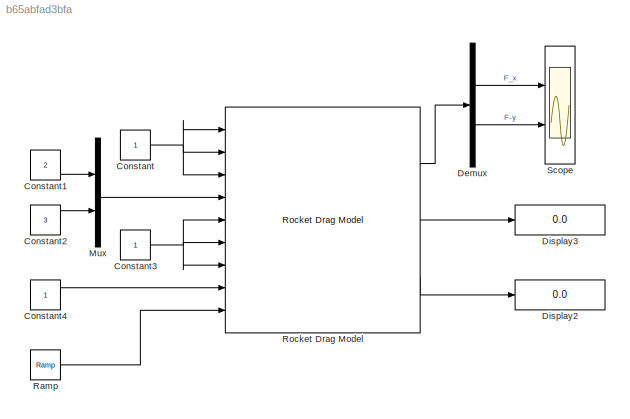
MODEL slx_b65abfad3bfa
KIND model
BLOCK [Constant] Constant
BLOCK [Constant] Constant1
  Value = 2
BLOCK [Constant] Constant2
  Value = 3
BLOCK [Constant] Constant3
BLOCK [Constant] Constant4
BLOCK [Demux] Demux
  DisplayOption = bar
  Outputs = 2
  Ports = [1, 2]
BLOCK [Display] Display2
  Decimation = 1
  Ports = [1]
BLOCK [Display] Display3
  Decimation = 1
  Ports = [1]
BLOCK [Mux] Mux
  DisplayOption = bar
  Inputs = 2
  Ports = [2, 1]
BLOCK [Reference] Ramp  REF=simulink/Sources/Ramp
  Ports = [0, 1]
  SourceBlock = simulink/Sources/Ramp
  SourceType = Ramp
  VectorParams1D = on
  X0 = 0
  slope = -1
  start = 0
BLOCK [Reference] Rocket Drag Model  REF=rocket_drag_library/Rocket Drag Model  (lib defined in slx_51275aa4cfd2)
  Ports = [9, 3]
  SourceBlock = rocket_drag_library/Rocket Drag Model
  SourceType = SubSystem
BLOCK [Scope] Scope
  DataFormat = StructureWithTime
  Floating = off
  NumInputPorts = 2
  Ports = [2]
  SampleTime = 0
  ShowLegends = off
  YMax = 5~5
  YMin = -5~-5
LINE Constant1:1 -> Mux:1
LINE Constant2:1 -> Mux:2
NET Constant3:1 -> Rocket Drag Model:5, Rocket Drag Model:6, Rocket Drag Model:7
LINE Constant4:1 -> Rocket Drag Model:8
NET Constant:1 -> Rocket Drag Model:1, Rocket Drag Model:2, Rocket Drag Model:3
LINE Demux:1 -> Scope:1
LINE Demux:2 -> Scope:2
LINE Mux:1 -> Rocket Drag Model:4
LINE Ramp:1 -> Rocket Drag Model:9
LINE Rocket Drag Model:1 -> Demux:1
LINE Rocket Drag Model:2 -> Display3:1
LINE Rocket Drag Model:3 -> Display2:1
note: NET lines group one-source signal fan-out (src -> all destinations, sorted); 1:1 wires keep LINE
